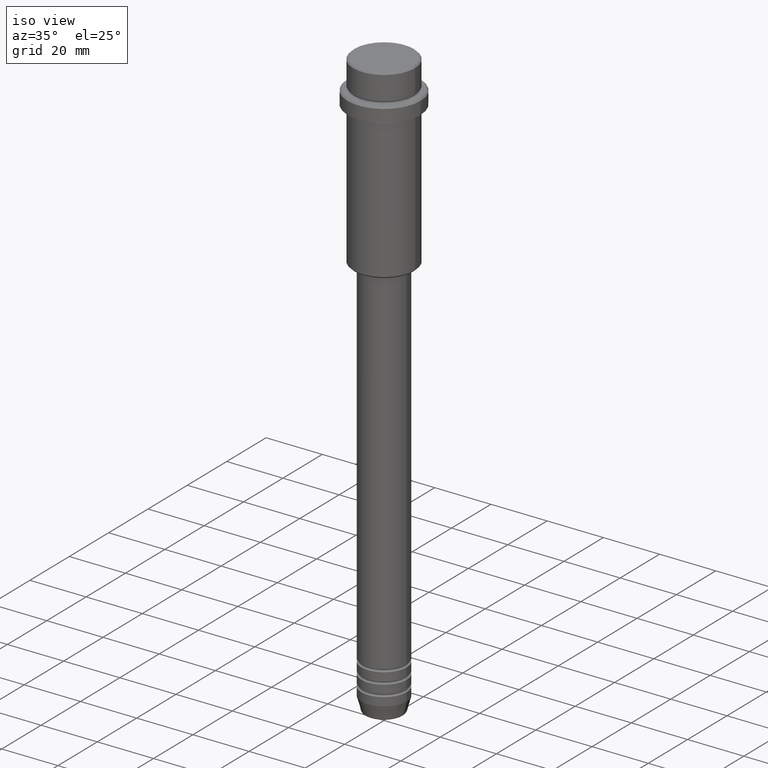
[diagram: clean part render]
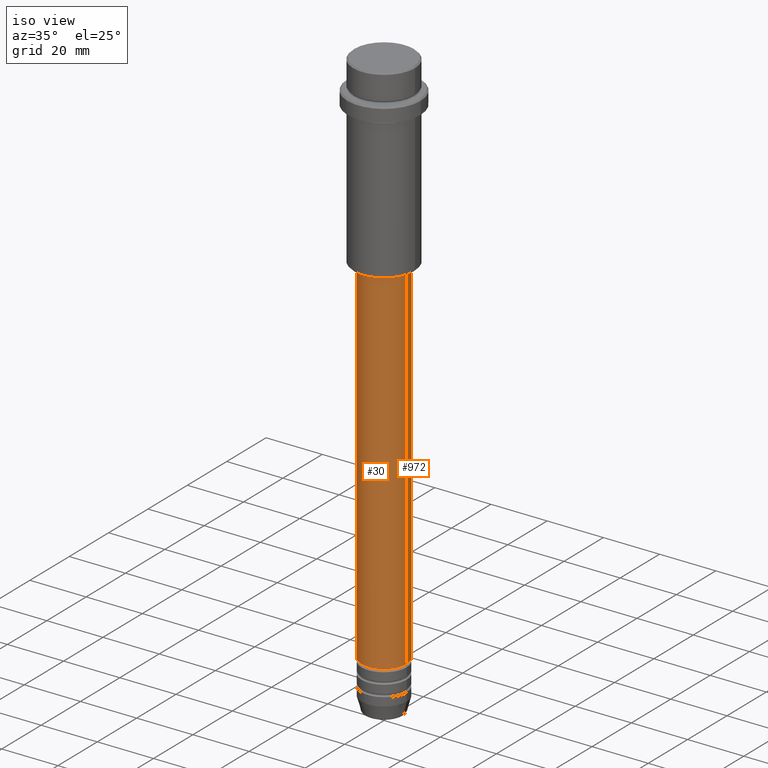
[diagram: same view with one multi-face feature highlighted, each face labeled with its STEP entity id]
A machine part, iso view. The highlighted faces form ONE feature: a constant-radius fillet chain: 2 tangent blend faces with common blend radius 8 mm. The faces share edges in the B-rep.
Their STEP definitions:
[1] entity #972 (Cylinder):
#3 = CARTESIAN_POINT ( 'NONE',  ( 0.000000000000000000, 0.000000000000000000, -192.9999999999999147 ) ) ;
#86 = AXIS2_PLACEMENT_3D ( 'NONE', #3, #640, #1084 ) ;
#105 = CIRCLE ( 'NONE', #129, 8.000000000000000000 ) ;
#114 = ORIENTED_EDGE ( 'NONE', *, *, #146, .F. ) ;
#118 = CARTESIAN_POINT ( 'NONE',  ( 0.000000000000000000, 0.000000000000000000, 0.000000000000000000 ) ) ;
#121 = DIRECTION ( 'NONE',  ( -0.000000000000000000, -0.000000000000000000, 1.000000000000000000 ) ) ;
#129 = AXIS2_PLACEMENT_3D ( 'NONE', #215, #121, #980 ) ;
#146 = EDGE_CURVE ( 'NONE', #448, #157, #1106, .T. ) ;
#157 = VERTEX_POINT ( 'NONE', #769 ) ;
#192 = ORIENTED_EDGE ( 'NONE', *, *, #1263, .T. ) ;
#215 = CARTESIAN_POINT ( 'NONE',  ( 0.000000000000000000, 0.000000000000000000, -67.00000000000000000 ) ) ;
#222 = FACE_OUTER_BOUND ( 'NONE', #658, .T. ) ;
#225 = ORIENTED_EDGE ( 'NONE', *, *, #468, .T. ) ;
#336 = DIRECTION ( 'NONE',  ( -0.000000000000000000, -0.000000000000000000, 1.000000000000000000 ) ) ;
#400 = VECTOR ( 'NONE', #1121, 1000.000000000000000 ) ;
#448 = VERTEX_POINT ( 'NONE', #790 ) ;
#468 = EDGE_CURVE ( 'NONE', #1247, #801, #697, .T. ) ;
#551 = DIRECTION ( 'NONE',  ( -0.000000000000000000, -0.000000000000000000, 1.000000000000000000 ) ) ;
#640 = DIRECTION ( 'NONE',  ( -0.000000000000000000, -0.000000000000000000, 1.000000000000000000 ) ) ;
#642 = CARTESIAN_POINT ( 'NONE',  ( 8.000000000000000000, 0.000000000000000000, 0.000000000000000000 ) ) ;
#658 = EDGE_LOOP ( 'NONE', ( #192, #225, #663, #114 ) ) ;
#663 = ORIENTED_EDGE ( 'NONE', *, *, #674, .F. ) ;
#674 = EDGE_CURVE ( 'NONE', #157, #801, #105, .T. ) ;
#697 = LINE ( 'NONE', #1143, #400 ) ;
#746 = CARTESIAN_POINT ( 'NONE',  ( -8.000000000000000000, 9.797174393178825657E-16, -192.9999999999999147 ) ) ;
#769 = CARTESIAN_POINT ( 'NONE',  ( 8.000000000000000000, 0.000000000000000000, -67.00000000000000000 ) ) ;
#790 = CARTESIAN_POINT ( 'NONE',  ( 8.000000000000000000, 0.000000000000000000, -192.9999999999999147 ) ) ;
#792 = AXIS2_PLACEMENT_3D ( 'NONE', #118, #551, #1221 ) ;
#801 = VERTEX_POINT ( 'NONE', #1219 ) ;
#972 = ADVANCED_FACE ( 'NONE', ( #222 ), #1322, .T. ) ;
#980 = DIRECTION ( 'NONE',  ( 1.000000000000000000, 0.000000000000000000, 0.000000000000000000 ) ) ;
#1084 = DIRECTION ( 'NONE',  ( 1.000000000000000000, 0.000000000000000000, 0.000000000000000000 ) ) ;
#1106 = LINE ( 'NONE', #642, #1311 ) ;
#1121 = DIRECTION ( 'NONE',  ( -0.000000000000000000, -0.000000000000000000, 1.000000000000000000 ) ) ;
#1143 = CARTESIAN_POINT ( 'NONE',  ( -8.000000000000000000, 9.797174393178825657E-16, 0.000000000000000000 ) ) ;
#1219 = CARTESIAN_POINT ( 'NONE',  ( -8.000000000000000000, 9.797174393178825657E-16, -67.00000000000000000 ) ) ;
#1221 = DIRECTION ( 'NONE',  ( 1.000000000000000000, 0.000000000000000000, 0.000000000000000000 ) ) ;
#1247 = VERTEX_POINT ( 'NONE', #746 ) ;
#1263 = EDGE_CURVE ( 'NONE', #448, #1247, #1295, .T. ) ;
#1295 = CIRCLE ( 'NONE', #86, 8.000000000000000000 ) ;
#1311 = VECTOR ( 'NONE', #336, 1000.000000000000000 ) ;
#1322 = CYLINDRICAL_SURFACE ( 'NONE', #792, 8.000000000000000000 ) ;
[2] entity #30 (Cylinder):
#30 = ADVANCED_FACE ( 'NONE', ( #1414 ), #221, .T. ) ;
#146 = EDGE_CURVE ( 'NONE', #448, #157, #1106, .T. ) ;
#149 = CIRCLE ( 'NONE', #269, 8.000000000000000000 ) ;
#157 = VERTEX_POINT ( 'NONE', #769 ) ;
#221 = CYLINDRICAL_SURFACE ( 'NONE', #511, 8.000000000000000000 ) ;
#262 = ORIENTED_EDGE ( 'NONE', *, *, #814, .T. ) ;
#269 = AXIS2_PLACEMENT_3D ( 'NONE', #618, #627, #1370 ) ;
#322 = DIRECTION ( 'NONE',  ( 1.000000000000000000, 0.000000000000000000, 0.000000000000000000 ) ) ;
#336 = DIRECTION ( 'NONE',  ( -0.000000000000000000, -0.000000000000000000, 1.000000000000000000 ) ) ;
#400 = VECTOR ( 'NONE', #1121, 1000.000000000000000 ) ;
#448 = VERTEX_POINT ( 'NONE', #790 ) ;
#468 = EDGE_CURVE ( 'NONE', #1247, #801, #697, .T. ) ;
#486 = EDGE_CURVE ( 'NONE', #801, #157, #149, .T. ) ;
#511 = AXIS2_PLACEMENT_3D ( 'NONE', #542, #661, #322 ) ;
#522 = EDGE_LOOP ( 'NONE', ( #935, #262, #950, #973 ) ) ;
#542 = CARTESIAN_POINT ( 'NONE',  ( 0.000000000000000000, 0.000000000000000000, 0.000000000000000000 ) ) ;
#603 = CIRCLE ( 'NONE', #1161, 8.000000000000000000 ) ;
#618 = CARTESIAN_POINT ( 'NONE',  ( 0.000000000000000000, 0.000000000000000000, -67.00000000000000000 ) ) ;
#627 = DIRECTION ( 'NONE',  ( -0.000000000000000000, -0.000000000000000000, 1.000000000000000000 ) ) ;
#642 = CARTESIAN_POINT ( 'NONE',  ( 8.000000000000000000, 0.000000000000000000, 0.000000000000000000 ) ) ;
#661 = DIRECTION ( 'NONE',  ( -0.000000000000000000, -0.000000000000000000, 1.000000000000000000 ) ) ;
#686 = DIRECTION ( 'NONE',  ( -0.000000000000000000, -0.000000000000000000, 1.000000000000000000 ) ) ;
#697 = LINE ( 'NONE', #1143, #400 ) ;
#746 = CARTESIAN_POINT ( 'NONE',  ( -8.000000000000000000, 9.797174393178825657E-16, -192.9999999999999147 ) ) ;
#769 = CARTESIAN_POINT ( 'NONE',  ( 8.000000000000000000, 0.000000000000000000, -67.00000000000000000 ) ) ;
#790 = CARTESIAN_POINT ( 'NONE',  ( 8.000000000000000000, 0.000000000000000000, -192.9999999999999147 ) ) ;
#801 = VERTEX_POINT ( 'NONE', #1219 ) ;
#814 = EDGE_CURVE ( 'NONE', #1247, #448, #603, .T. ) ;
#935 = ORIENTED_EDGE ( 'NONE', *, *, #468, .F. ) ;
#950 = ORIENTED_EDGE ( 'NONE', *, *, #146, .T. ) ;
#973 = ORIENTED_EDGE ( 'NONE', *, *, #486, .F. ) ;
#1106 = LINE ( 'NONE', #642, #1311 ) ;
#1121 = DIRECTION ( 'NONE',  ( -0.000000000000000000, -0.000000000000000000, 1.000000000000000000 ) ) ;
#1143 = CARTESIAN_POINT ( 'NONE',  ( -8.000000000000000000, 9.797174393178825657E-16, 0.000000000000000000 ) ) ;
#1161 = AXIS2_PLACEMENT_3D ( 'NONE', #1347, #686, #1235 ) ;
#1219 = CARTESIAN_POINT ( 'NONE',  ( -8.000000000000000000, 9.797174393178825657E-16, -67.00000000000000000 ) ) ;
#1235 = DIRECTION ( 'NONE',  ( 1.000000000000000000, 0.000000000000000000, 0.000000000000000000 ) ) ;
#1247 = VERTEX_POINT ( 'NONE', #746 ) ;
#1311 = VECTOR ( 'NONE', #336, 1000.000000000000000 ) ;
#1347 = CARTESIAN_POINT ( 'NONE',  ( 0.000000000000000000, 0.000000000000000000, -192.9999999999999147 ) ) ;
#1370 = DIRECTION ( 'NONE',  ( 1.000000000000000000, 0.000000000000000000, 0.000000000000000000 ) ) ;
#1414 = FACE_OUTER_BOUND ( 'NONE', #522, .T. ) ;